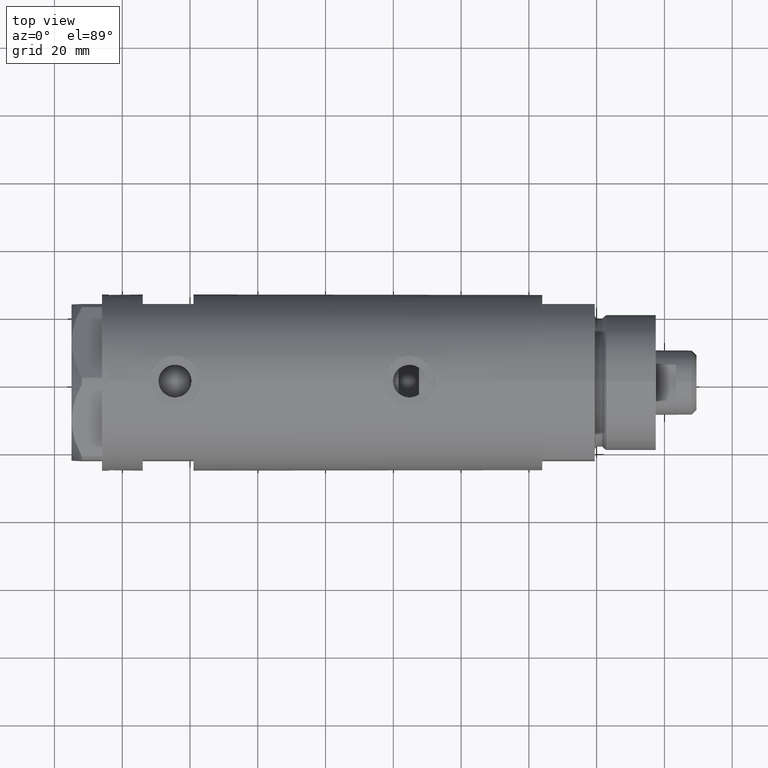
[diagram: clean part render]
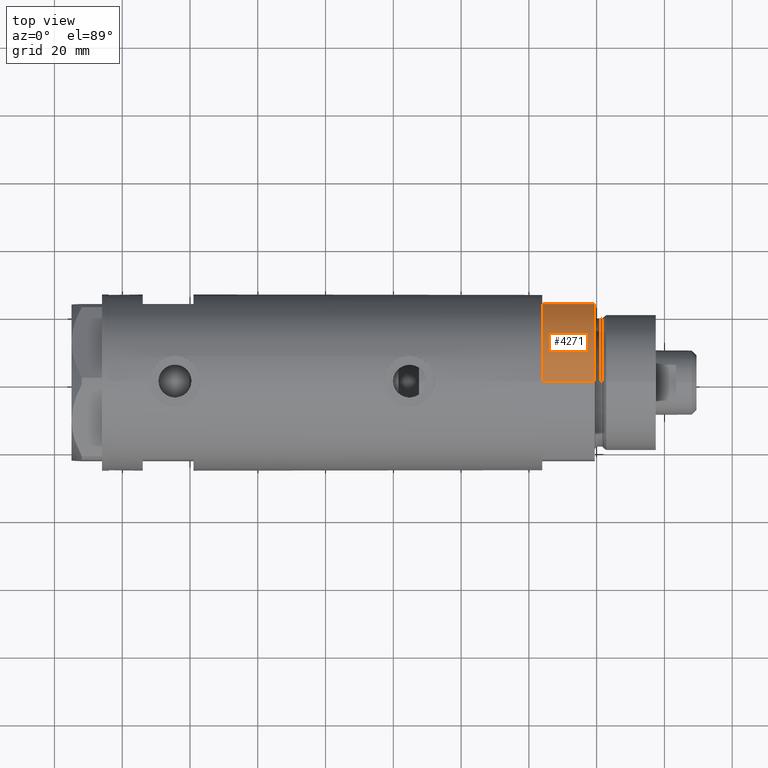
[diagram: same view with one face highlighted and labeled with its STEP entity id]
A machine part, top view. The second image highlights one B-rep face of the part: STEP entity #4271.
In plain terms, the highlighted cylindrical surface (partial cylindrical patch) has radius 26 mm, axis along (-1, -0, 0).
Its self-contained STEP definition (entity closure, byte-faithful):
#135 = DIRECTION ( 'NONE',  ( 0.000000000000000000, 0.000000000000000000, 1.000000000000000000 ) ) ;
#172 = CIRCLE ( 'NONE', #4868, 26.00000000000000355 ) ;
#408 = CARTESIAN_POINT ( 'NONE',  ( 0.000000000000000000, 0.000000000000000000, 15.50000000000000000 ) ) ;
#633 = ORIENTED_EDGE ( 'NONE', *, *, #2532, .F. ) ;
#901 = VERTEX_POINT ( 'NONE', #3680 ) ;
#1013 = DIRECTION ( 'NONE',  ( 0.000000000000000000, 0.000000000000000000, 1.000000000000000000 ) ) ;
#1089 = CARTESIAN_POINT ( 'NONE',  ( 0.000000000000000000, 0.000000000000000000, 15.50000000000000000 ) ) ;
#1314 = CARTESIAN_POINT ( 'NONE',  ( -26.00000000000000355, 0.000000000000000000, 15.50000000000000000 ) ) ;
#1340 = CYLINDRICAL_SURFACE ( 'NONE', #4295, 26.00000000000000355 ) ;
#1544 = ORIENTED_EDGE ( 'NONE', *, *, #3844, .F. ) ;
#1574 = EDGE_CURVE ( 'NONE', #901, #5015, #172, .T. ) ;
#2273 = CIRCLE ( 'NONE', #4019, 26.00000000000000355 ) ;
#2426 = DIRECTION ( 'NONE',  ( -0.000000000000000000, -0.000000000000000000, -1.000000000000000000 ) ) ;
#2526 = EDGE_CURVE ( 'NONE', #4487, #5015, #3907, .T. ) ;
#2532 = EDGE_CURVE ( 'NONE', #2690, #4487, #2273, .T. ) ;
#2690 = VERTEX_POINT ( 'NONE', #6169 ) ;
#2900 = CARTESIAN_POINT ( 'NONE',  ( 0.000000000000000000, 0.000000000000000000, 0.000000000000000000 ) ) ;
#2923 = CARTESIAN_POINT ( 'NONE',  ( -26.00000000000000355, 0.000000000000000000, 0.000000000000000000 ) ) ;
#3044 = CARTESIAN_POINT ( 'NONE',  ( -12.12435565298215145, 23.00000000000000355, 0.000000000000000000 ) ) ;
#3297 = DIRECTION ( 'NONE',  ( -1.000000000000000000, 0.000000000000000000, 0.000000000000000000 ) ) ;
#3458 = DIRECTION ( 'NONE',  ( 1.000000000000000000, 0.000000000000000000, 0.000000000000000000 ) ) ;
#3500 = DIRECTION ( 'NONE',  ( -0.000000000000000000, -0.000000000000000000, 1.000000000000000000 ) ) ;
#3680 = CARTESIAN_POINT ( 'NONE',  ( -12.12435565298215145, 23.00000000000000355, 0.000000000000000000 ) ) ;
#3712 = VECTOR ( 'NONE', #2426, 1000.000000000000000 ) ;
#3844 = EDGE_CURVE ( 'NONE', #901, #2690, #5920, .T. ) ;
#3907 = LINE ( 'NONE', #1314, #3712 ) ;
#3974 = DIRECTION ( 'NONE',  ( 1.000000000000000000, 0.000000000000000000, 0.000000000000000000 ) ) ;
#4019 = AXIS2_PLACEMENT_3D ( 'NONE', #1089, #135, #3974 ) ;
#4247 = ORIENTED_EDGE ( 'NONE', *, *, #2526, .F. ) ;
#4271 = ADVANCED_FACE ( 'NONE', ( #4797 ), #1340, .T. ) ;
#4295 = AXIS2_PLACEMENT_3D ( 'NONE', #408, #5780, #3297 ) ;
#4487 = VERTEX_POINT ( 'NONE', #5393 ) ;
#4785 = EDGE_LOOP ( 'NONE', ( #4247, #633, #1544, #6318 ) ) ;
#4797 = FACE_OUTER_BOUND ( 'NONE', #4785, .T. ) ;
#4868 = AXIS2_PLACEMENT_3D ( 'NONE', #2900, #1013, #3458 ) ;
#5015 = VERTEX_POINT ( 'NONE', #2923 ) ;
#5116 = VECTOR ( 'NONE', #3500, 1000.000000000000000 ) ;
#5393 = CARTESIAN_POINT ( 'NONE',  ( -26.00000000000000355, 0.000000000000000000, 15.50000000000000000 ) ) ;
#5780 = DIRECTION ( 'NONE',  ( -0.000000000000000000, -0.000000000000000000, -1.000000000000000000 ) ) ;
#5920 = LINE ( 'NONE', #3044, #5116 ) ;
#6169 = CARTESIAN_POINT ( 'NONE',  ( -12.12435565298214613, 23.00000000000000355, 15.50000000000000000 ) ) ;
#6318 = ORIENTED_EDGE ( 'NONE', *, *, #1574, .T. ) ;